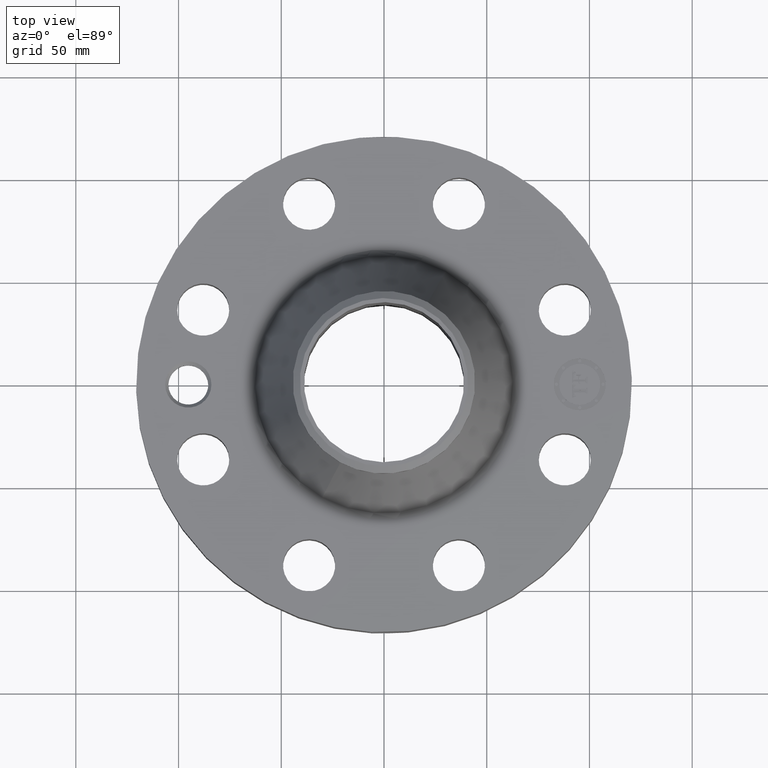
[diagram: clean part render]
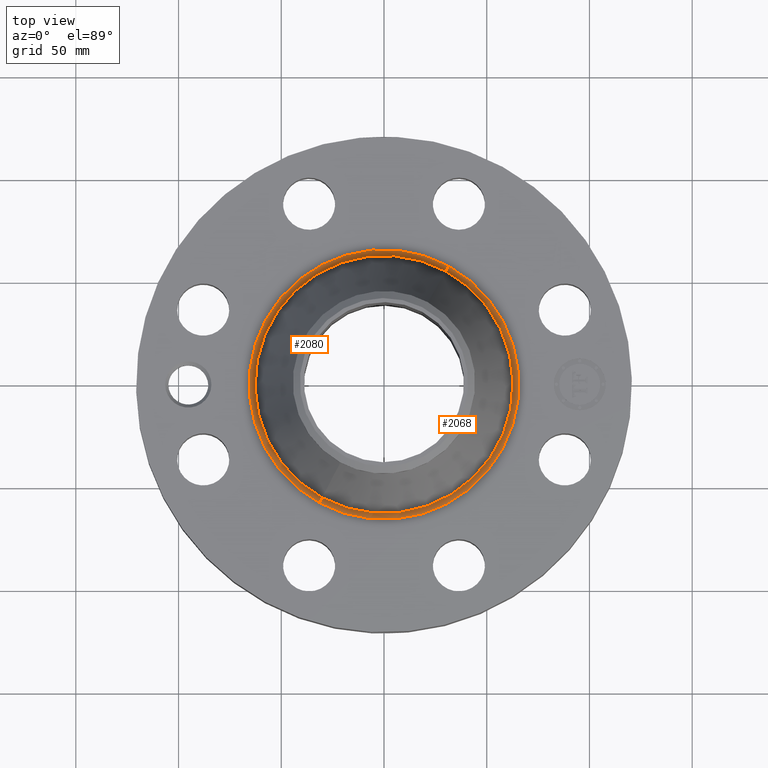
[diagram: same view with one multi-face feature highlighted, each face labeled with its STEP entity id]
A machine part, top view. The highlighted faces form ONE feature: a constant-radius fillet chain: 2 tangent blend faces with common blend radius 3.048 mm. The faces share edges in the B-rep.
Their STEP definitions:
[1] entity #2080 (Torus):
#535=AXIS2_PLACEMENT_3D('Circle Axis2P3D',#533,#534,$) ;
#2041=AXIS2_PLACEMENT_3D('Torus Axis2P3D',#2038,#2039,#2040) ;
#2045=AXIS2_PLACEMENT_3D('Circle Axis2P3D',#2043,#2044,$) ;
#2059=AXIS2_PLACEMENT_3D('Circle Axis2P3D',#2057,#2058,$) ;
#2071=AXIS2_PLACEMENT_3D('Circle Axis2P3D',#2069,#2070,$) ;
#533=CARTESIAN_POINT('Axis2P3D Location',(0.,0.,1.75000000001)) ;
#537=CARTESIAN_POINT('Vertex',(-1.23947864791,-2.26885044632,1.75000000001)) ;
#539=CARTESIAN_POINT('Vertex',(1.23947864791,2.26885044632,1.75000000001)) ;
#2038=CARTESIAN_POINT('Axis2P3D Location',(0.,0.,1.87000000001)) ;
#2043=CARTESIAN_POINT('Axis2P3D Location',(1.23947864791,2.26885044632,1.87000000001)) ;
#2047=CARTESIAN_POINT('Vertex',(1.18513474915,2.16937460689,1.830613479)) ;
#2054=CARTESIAN_POINT('Vertex',(-1.18513474915,-2.16937460689,1.830613479)) ;
#2057=CARTESIAN_POINT('Axis2P3D Location',(-1.23947864791,-2.26885044632,1.87000000001)) ;
#2069=CARTESIAN_POINT('Axis2P3D Location',(0.,0.,1.830613479)) ;
#534=DIRECTION('Axis2P3D Direction',(0.,0.,-0.0393700787402)) ;
#2039=DIRECTION('Axis2P3D Direction',(0.,0.,-0.0393700787402)) ;
#2040=DIRECTION('Axis2P3D XDirection',(-0.0188750212049,-0.0345504945626,0.)) ;
#2044=DIRECTION('Axis2P3D Direction',(-0.0345504945626,0.0188750212049,0.)) ;
#2058=DIRECTION('Axis2P3D Direction',(0.0345504945626,-0.0188750212049,0.)) ;
#2070=DIRECTION('Axis2P3D Direction',(0.,0.,-0.0393700787402)) ;
#2075=ORIENTED_EDGE('',*,*,#541,.F.) ;
#2076=ORIENTED_EDGE('',*,*,#2061,.T.) ;
#2077=ORIENTED_EDGE('',*,*,#2073,.T.) ;
#2078=ORIENTED_EDGE('',*,*,#2049,.F.) ;
#2080=ADVANCED_FACE('PartBody',(#2079),#2042,.F.) ;
#536=CIRCLE('generated circle',#535,2.58534130559) ;
#2046=CIRCLE('generated circle',#2045,0.12) ;
#2060=CIRCLE('generated circle',#2059,0.12) ;
#2072=CIRCLE('generated circle',#2071,2.47198919064) ;
#2042=TOROIDAL_SURFACE('homeo Torus',#2041,2.58534130559,0.12) ;
#541=EDGE_CURVE('',#538,#540,#536,.T.) ;
#2049=EDGE_CURVE('',#540,#2048,#2046,.T.) ;
#2061=EDGE_CURVE('',#538,#2055,#2060,.T.) ;
#2073=EDGE_CURVE('',#2055,#2048,#2072,.T.) ;
#2074=EDGE_LOOP('',(#2075,#2076,#2077,#2078)) ;
#2079=FACE_OUTER_BOUND('',#2074,.T.) ;
#538=VERTEX_POINT('',#537) ;
#540=VERTEX_POINT('',#539) ;
#2048=VERTEX_POINT('',#2047) ;
#2055=VERTEX_POINT('',#2054) ;
[2] entity #2068 (Torus):
#544=AXIS2_PLACEMENT_3D('Circle Axis2P3D',#542,#543,$) ;
#2041=AXIS2_PLACEMENT_3D('Torus Axis2P3D',#2038,#2039,#2040) ;
#2045=AXIS2_PLACEMENT_3D('Circle Axis2P3D',#2043,#2044,$) ;
#2052=AXIS2_PLACEMENT_3D('Circle Axis2P3D',#2050,#2051,$) ;
#2059=AXIS2_PLACEMENT_3D('Circle Axis2P3D',#2057,#2058,$) ;
#537=CARTESIAN_POINT('Vertex',(-1.23947864791,-2.26885044632,1.75000000001)) ;
#539=CARTESIAN_POINT('Vertex',(1.23947864791,2.26885044632,1.75000000001)) ;
#542=CARTESIAN_POINT('Axis2P3D Location',(0.,0.,1.75000000001)) ;
#2038=CARTESIAN_POINT('Axis2P3D Location',(0.,0.,1.87000000001)) ;
#2043=CARTESIAN_POINT('Axis2P3D Location',(1.23947864791,2.26885044632,1.87000000001)) ;
#2047=CARTESIAN_POINT('Vertex',(1.18513474915,2.16937460689,1.830613479)) ;
#2050=CARTESIAN_POINT('Axis2P3D Location',(0.,0.,1.830613479)) ;
#2054=CARTESIAN_POINT('Vertex',(-1.18513474915,-2.16937460689,1.830613479)) ;
#2057=CARTESIAN_POINT('Axis2P3D Location',(-1.23947864791,-2.26885044632,1.87000000001)) ;
#543=DIRECTION('Axis2P3D Direction',(0.,0.,-0.0393700787402)) ;
#2039=DIRECTION('Axis2P3D Direction',(0.,0.,-0.0393700787402)) ;
#2040=DIRECTION('Axis2P3D XDirection',(-0.0188750212049,-0.0345504945626,0.)) ;
#2044=DIRECTION('Axis2P3D Direction',(-0.0345504945626,0.0188750212049,0.)) ;
#2051=DIRECTION('Axis2P3D Direction',(0.,0.,-0.0393700787402)) ;
#2058=DIRECTION('Axis2P3D Direction',(0.0345504945626,-0.0188750212049,0.)) ;
#2063=ORIENTED_EDGE('',*,*,#546,.F.) ;
#2064=ORIENTED_EDGE('',*,*,#2049,.T.) ;
#2065=ORIENTED_EDGE('',*,*,#2056,.T.) ;
#2066=ORIENTED_EDGE('',*,*,#2061,.F.) ;
#2068=ADVANCED_FACE('PartBody',(#2067),#2042,.F.) ;
#545=CIRCLE('generated circle',#544,2.58534130559) ;
#2046=CIRCLE('generated circle',#2045,0.12) ;
#2053=CIRCLE('generated circle',#2052,2.47198919064) ;
#2060=CIRCLE('generated circle',#2059,0.12) ;
#2042=TOROIDAL_SURFACE('homeo Torus',#2041,2.58534130559,0.12) ;
#546=EDGE_CURVE('',#540,#538,#545,.T.) ;
#2049=EDGE_CURVE('',#540,#2048,#2046,.T.) ;
#2056=EDGE_CURVE('',#2048,#2055,#2053,.T.) ;
#2061=EDGE_CURVE('',#538,#2055,#2060,.T.) ;
#2062=EDGE_LOOP('',(#2063,#2064,#2065,#2066)) ;
#2067=FACE_OUTER_BOUND('',#2062,.T.) ;
#538=VERTEX_POINT('',#537) ;
#540=VERTEX_POINT('',#539) ;
#2048=VERTEX_POINT('',#2047) ;
#2055=VERTEX_POINT('',#2054) ;